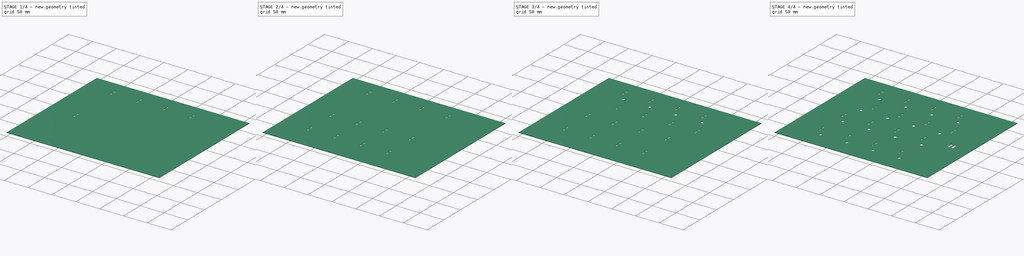
[diagram: build sequence overview — one tinted view per stage of 4, left to right]
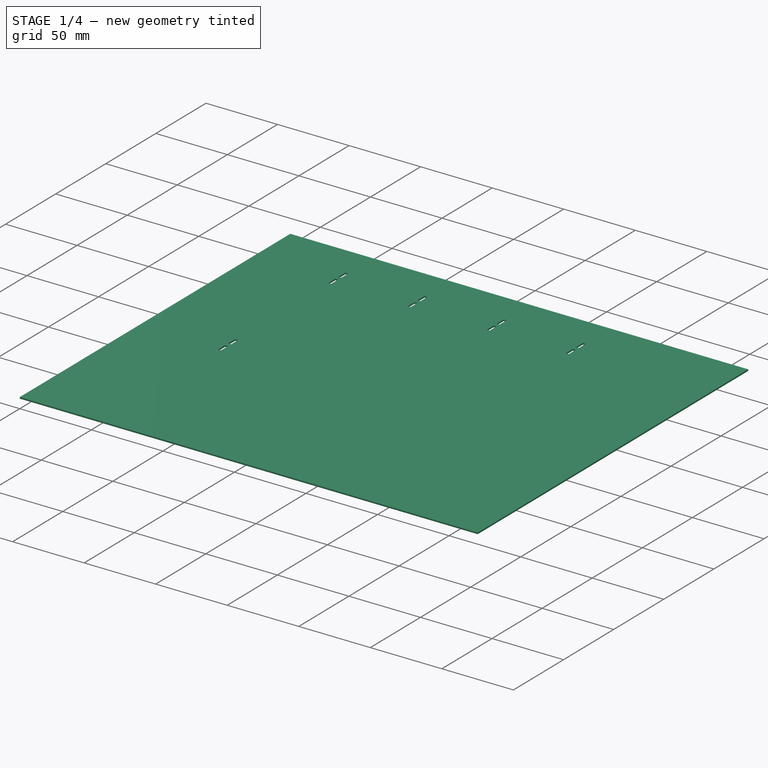
[diagram: stage 1 of 4 — iso view after this stage's code; geometry added in this stage tinted green]
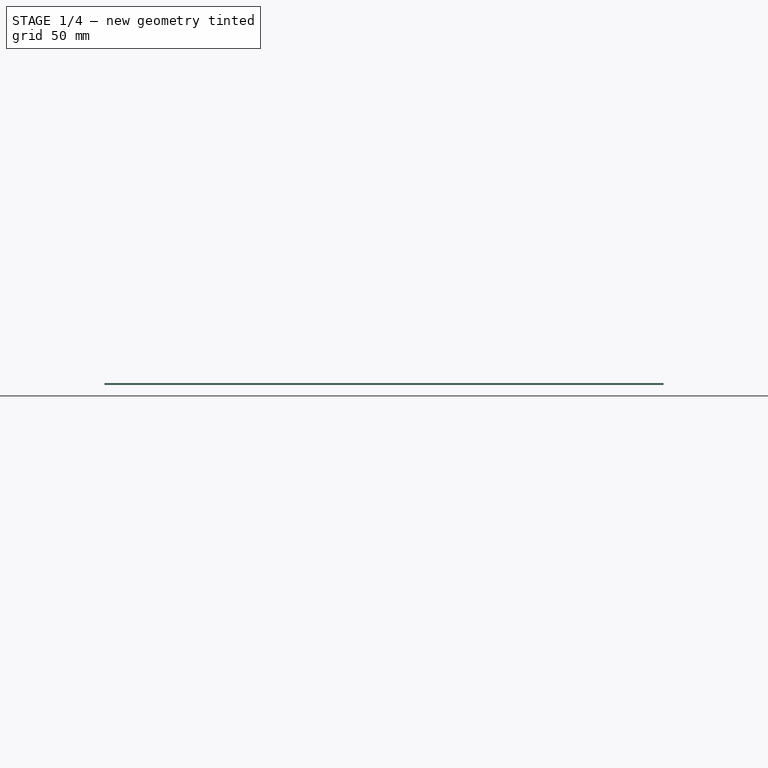
[diagram: stage 1 of 4 — front view after this stage's code; geometry added in this stage tinted green]
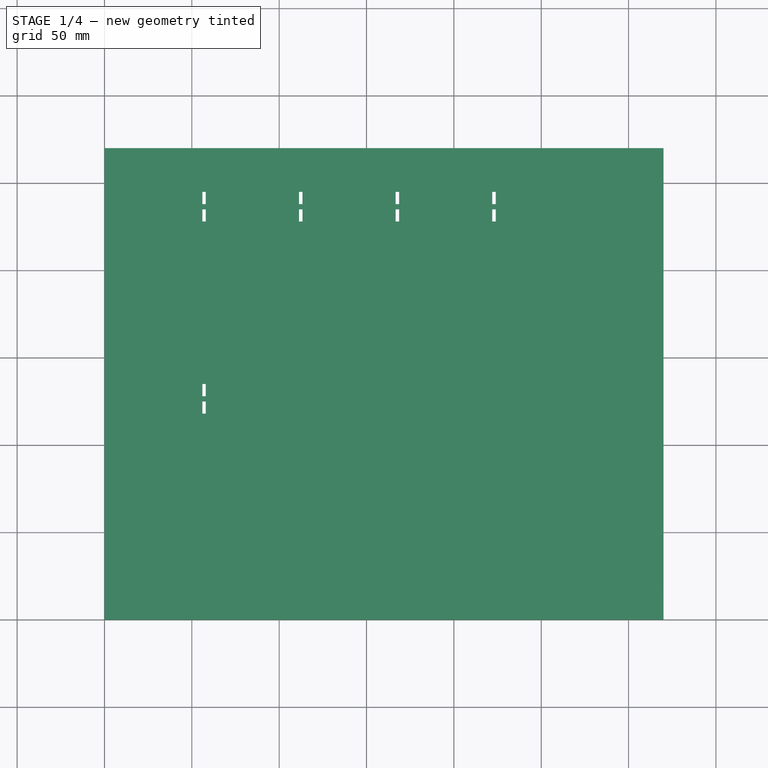
[diagram: stage 1 of 4 — top view after this stage's code; geometry added in this stage tinted green]
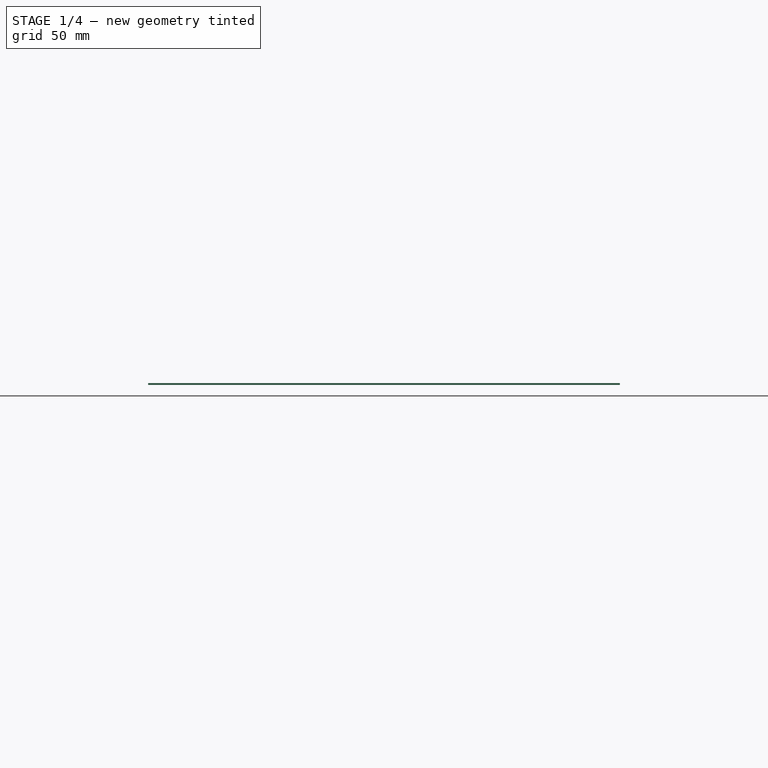
[diagram: stage 1 of 4 — right view after this stage's code; geometry added in this stage tinted green]
FCSTD DOCUMENT  (FreeCAD 0.14R3700 (Git))
Label: interFace-1mm
License: CC-BY 3.0
LicenseURL: http://creativecommons.org/licenses/by/3.0/
objects: Sketcher::SketchObject×8, PartDesign::Pocket×8, PartDesign::LinearPattern×5, Part::Box×1
note: 30 computed .brp shape members not serialized (recipe doc carries the construction recipe); baked Part::Feature solids carry a one-line shape summary decoded from their .brp

FEATURE [Part::Box] Box  label="Cubo"
  Height = 1
  Length = 320
  Width = 270
FEATURE [Sketcher::SketchObject] Sketch
  ExternalGeometry = -> [Box]
  Placement = pos=(0,0,1) rot=(0,0,1;0rad)
  Support = -> Box [Face6]
  sketch-geometry (8):
    g0: LineSegment StartX=56 StartY=245 StartZ=0 EndX=58 EndY=245 EndZ=0
    g1: LineSegment StartX=58 StartY=245 StartZ=0 EndX=58 EndY=238 EndZ=0
    g2: LineSegment StartX=58 StartY=238 StartZ=0 EndX=56 EndY=238 EndZ=0
    g3: LineSegment StartX=56 StartY=238 StartZ=0 EndX=56 EndY=245 EndZ=0
    g4: LineSegment StartX=58 StartY=235 StartZ=0 EndX=56 EndY=235 EndZ=0
    g5: LineSegment StartX=56 StartY=235 StartZ=0 EndX=56 EndY=228 EndZ=0
    g6: LineSegment StartX=56 StartY=228 StartZ=0 EndX=58 EndY=228 EndZ=0
    g7: LineSegment StartX=58 StartY=228 StartZ=0 EndX=58 EndY=235 EndZ=0
  constraints (28):
    c: Coincident(g0,g1)
    c: Coincident(g1,g2)
    c: Coincident(g2,g3)
    c: Coincident(g3,g0)
    c: Horizontal(g0)
    c: Horizontal(g2)
    c: Vertical(g1)
    c: Vertical(g3)
    c: Equal(g2,g0)
    c: Equal(g1,g3)
    c: DistanceX(g0) = 2
    c: DistanceY(g3) = 7
    c: DistanceY(g0,g-3) = 25
    c: DistanceX(g0,g-3) = -56
    c: Coincident(g4,g5)
    c: Coincident(g5,g6)
    c: Coincident(g6,g7)
    c: Coincident(g7,g4)
    c: Horizontal(g4)
    c: Horizontal(g6)
    c: Vertical(g5)
    c: Vertical(g7)
    c: Equal(g4,g6)
    c: DistanceX(g4) = -2
    c: Equal(g7,g5)
    c: DistanceY(g7) = 7
    c: DistanceX(g4,g-3) = -56
    c: DistanceY(g4,g-3) = 35
FEATURE [PartDesign::Pocket] Pocket
  Length = 5
  Sketch = -> Sketch
  Type = 0
FEATURE [PartDesign::LinearPattern] LinearPattern
  Direction = -> Sketch [H_Axis]
  Length = 166
  Occurrences = 4
  Originals = -> [Pocket]
FEATURE [Sketcher::SketchObject] Sketch001
  ExternalGeometry = -> [LinearPattern]
  Placement = pos=(0,0,1) rot=(0,0,1;0rad)
  Support = -> LinearPattern [Face3]
  sketch-geometry (8):
    g0: LineSegment StartX=58 StartY=135 StartZ=0 EndX=56 EndY=135 EndZ=0
    g1: LineSegment StartX=56 StartY=135 StartZ=0 EndX=56 EndY=128 EndZ=0
    g2: LineSegment StartX=56 StartY=128 StartZ=0 EndX=58 EndY=128 EndZ=0
    g3: LineSegment StartX=58 StartY=128 StartZ=0 EndX=58 EndY=135 EndZ=0
    g4: LineSegment StartX=58 StartY=125 StartZ=0 EndX=56 EndY=125 EndZ=0
    g5: LineSegment StartX=56 StartY=125 StartZ=0 EndX=56 EndY=118 EndZ=0
    g6: LineSegment StartX=56 StartY=118 StartZ=0 EndX=58 EndY=118 EndZ=0
    g7: LineSegment StartX=58 StartY=118 StartZ=0 EndX=58 EndY=125 EndZ=0
  constraints (28):
    c: Coincident(g0,g1)
    c: Coincident(g1,g2)
    c: Coincident(g2,g3)
    c: Coincident(g3,g0)
    c: Horizontal(g0)
    c: Horizontal(g2)
    c: Vertical(g1)
    c: Vertical(g3)
    c: Coincident(g4,g5)
    c: Coincident(g5,g6)
    c: Coincident(g6,g7)
    c: Coincident(g7,g4)
    c: Horizontal(g4)
    c: Horizontal(g6)
    c: Vertical(g5)
    c: Vertical(g7)
    c: Equal(g0,g2)
    c: Equal(g2,g4)
    c: Equal(g4,g6)
    c: Equal(g3,g1)
    c: Equal(g1,g5)
    c: Equal(g5,g7)
    c: DistanceX(g0) = -2
    c: DistanceY(g7) = 7
    c: DistanceY(g0,g-3) = 135
    c: DistanceX(g0,g-3) = -56
    c: DistanceX(g4,g-3) = -56
    c: DistanceY(g4,g-3) = 145
FEATURE [PartDesign::Pocket] Pocket001
  Length = 5
  Sketch = -> Sketch001
  Type = 0
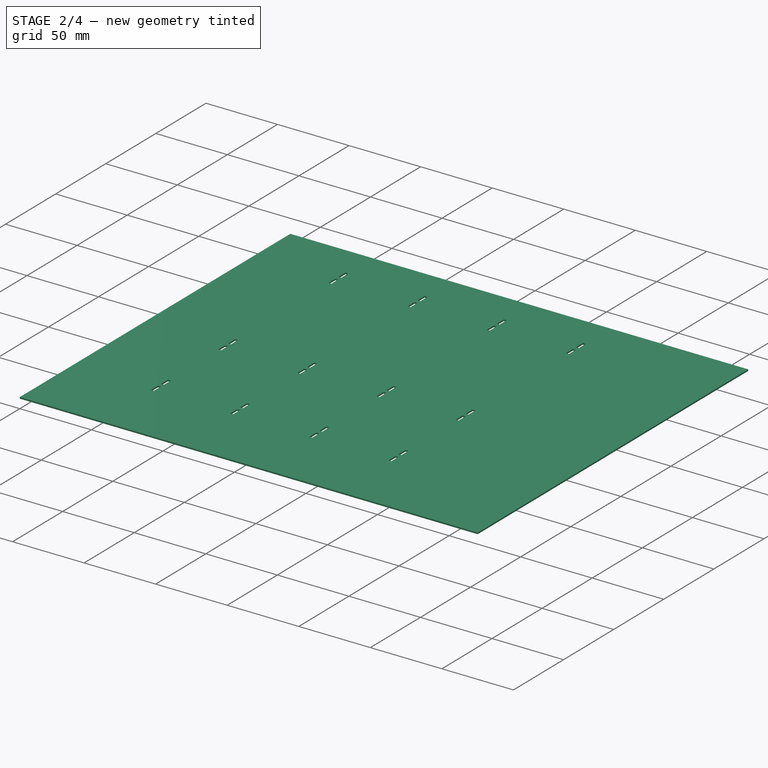
[diagram: stage 2 of 4 — iso view after this stage's code; geometry added in this stage tinted green]
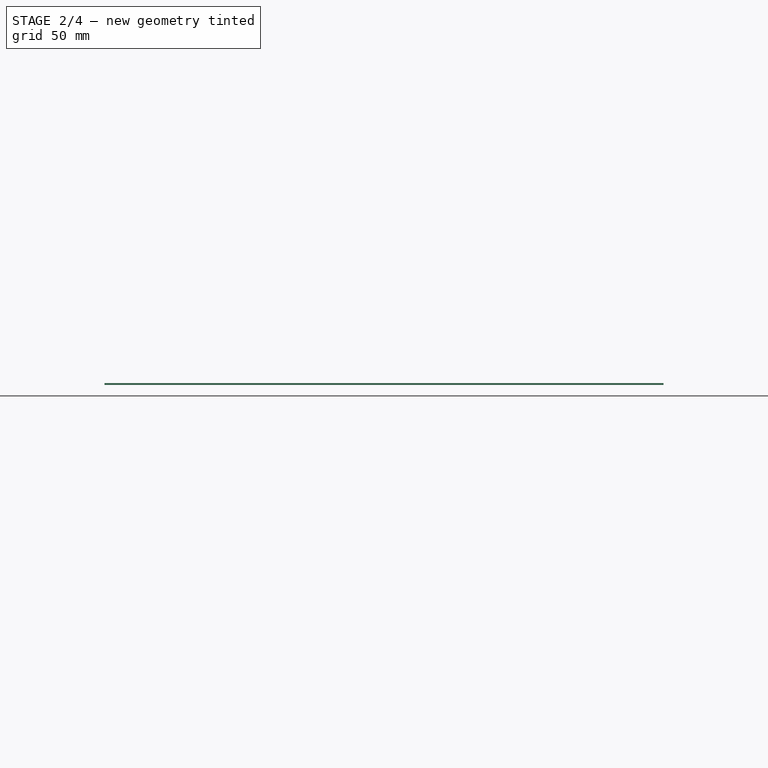
[diagram: stage 2 of 4 — front view after this stage's code; geometry added in this stage tinted green]
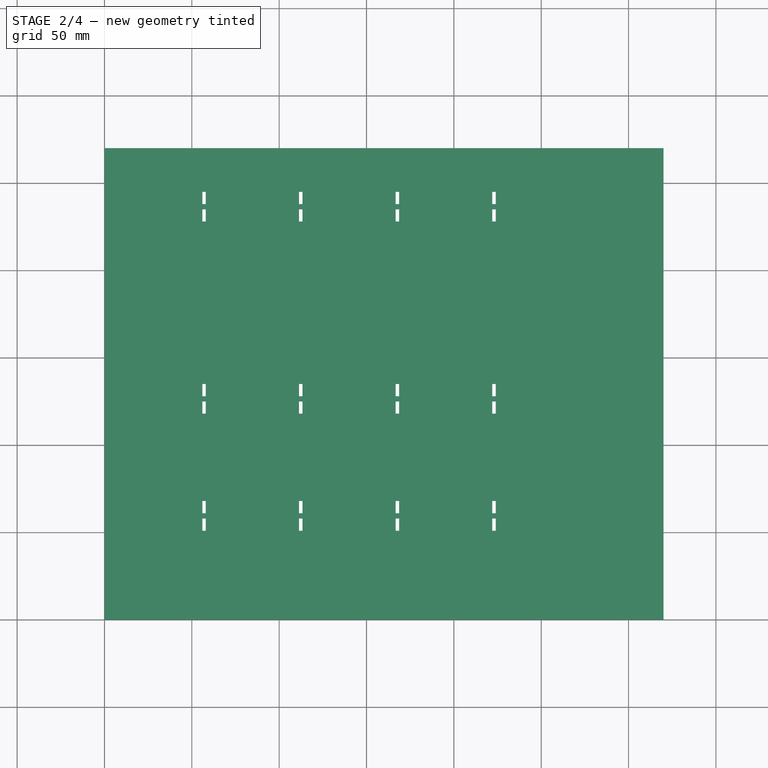
[diagram: stage 2 of 4 — top view after this stage's code; geometry added in this stage tinted green]
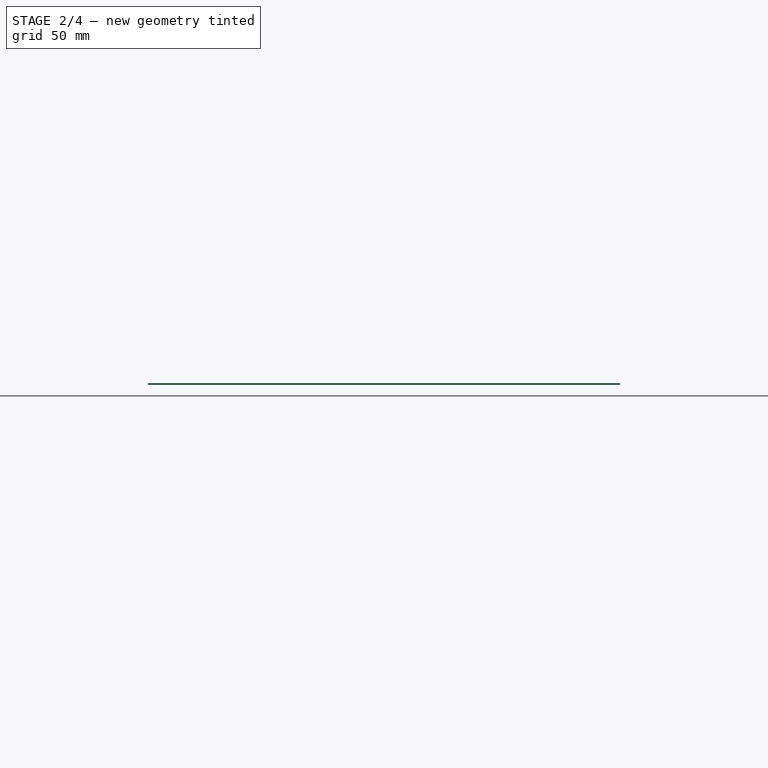
[diagram: stage 2 of 4 — right view after this stage's code; geometry added in this stage tinted green]
FEATURE [PartDesign::LinearPattern] LinearPattern001
  Direction = -> Sketch001 [H_Axis]
  Length = 166
  Occurrences = 4
  Originals = -> [Pocket001]
FEATURE [Sketcher::SketchObject] Sketch002
  ExternalGeometry = -> [LinearPattern001]
  Placement = pos=(0,0,1) rot=(0,0,1;0rad)
  Support = -> LinearPattern001 [Face3]
  sketch-geometry (8):
    g0: LineSegment StartX=58 StartY=68 StartZ=0 EndX=56 EndY=68 EndZ=0
    g1: LineSegment StartX=56 StartY=68 StartZ=0 EndX=56 EndY=61 EndZ=0
    g2: LineSegment StartX=56 StartY=61 StartZ=0 EndX=58 EndY=61 EndZ=0
    g3: LineSegment StartX=58 StartY=61 StartZ=0 EndX=58 EndY=68 EndZ=0
    g4: LineSegment StartX=58 StartY=58 StartZ=0 EndX=56 EndY=58 EndZ=0
    g5: LineSegment StartX=56 StartY=58 StartZ=0 EndX=56 EndY=51 EndZ=0
    g6: LineSegment StartX=56 StartY=51 StartZ=0 EndX=58 EndY=51 EndZ=0
    g7: LineSegment StartX=58 StartY=51 StartZ=0 EndX=58 EndY=58 EndZ=0
  constraints (28):
    c: Coincident(g0,g1)
    c: Coincident(g1,g2)
    c: Coincident(g2,g3)
    c: Coincident(g3,g0)
    c: Horizontal(g0)
    c: Horizontal(g2)
    c: Vertical(g1)
    c: Vertical(g3)
    c: Coincident(g4,g5)
    c: Coincident(g5,g6)
    c: Coincident(g6,g7)
    c: Coincident(g7,g4)
    c: Horizontal(g4)
    c: Horizontal(g6)
    c: Vertical(g5)
    c: Vertical(g7)
    c: Equal(g0,g2)
    c: Equal(g2,g4)
    c: Equal(g4,g6)
    c: DistanceX(g0) = -2
    c: Equal(g7,g5)
    c: Equal(g5,g3)
    c: Equal(g3,g1)
    c: DistanceY(g3) = 7
    c: DistanceX(g-1,g5) = 56
    c: DistanceX(g-1,g1) = 56
    c: DistanceY(g-1,g5) = 51
    c: DistanceY(g-1,g1) = 61
FEATURE [PartDesign::Pocket] Pocket002
  Length = 5
  Sketch = -> Sketch002
  Type = 0
FEATURE [PartDesign::LinearPattern] LinearPattern002
  Direction = -> Sketch002 [H_Axis]
  Length = 166
  Occurrences = 4
  Originals = -> [Pocket002]
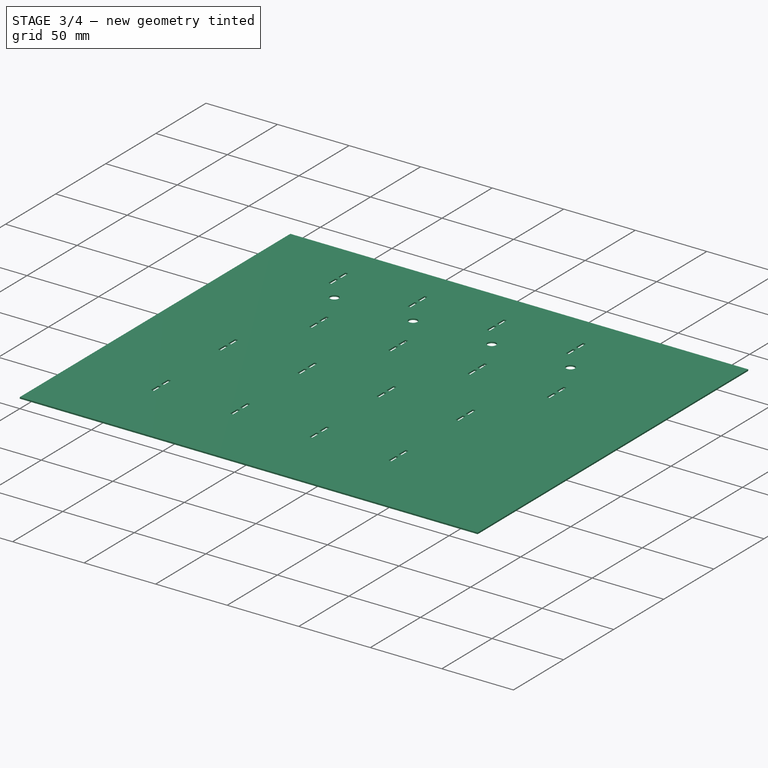
[diagram: stage 3 of 4 — iso view after this stage's code; geometry added in this stage tinted green]
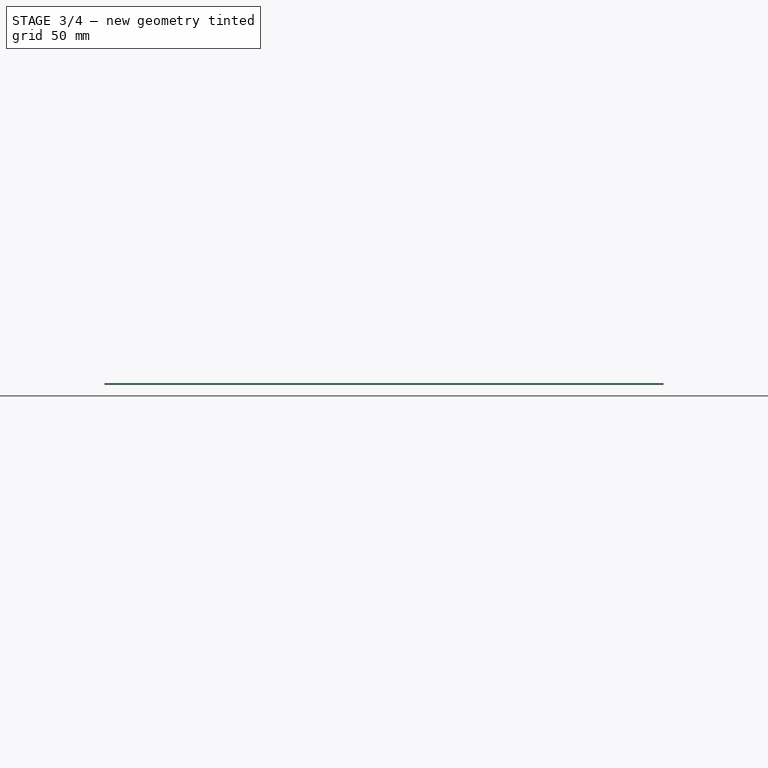
[diagram: stage 3 of 4 — front view after this stage's code; geometry added in this stage tinted green]
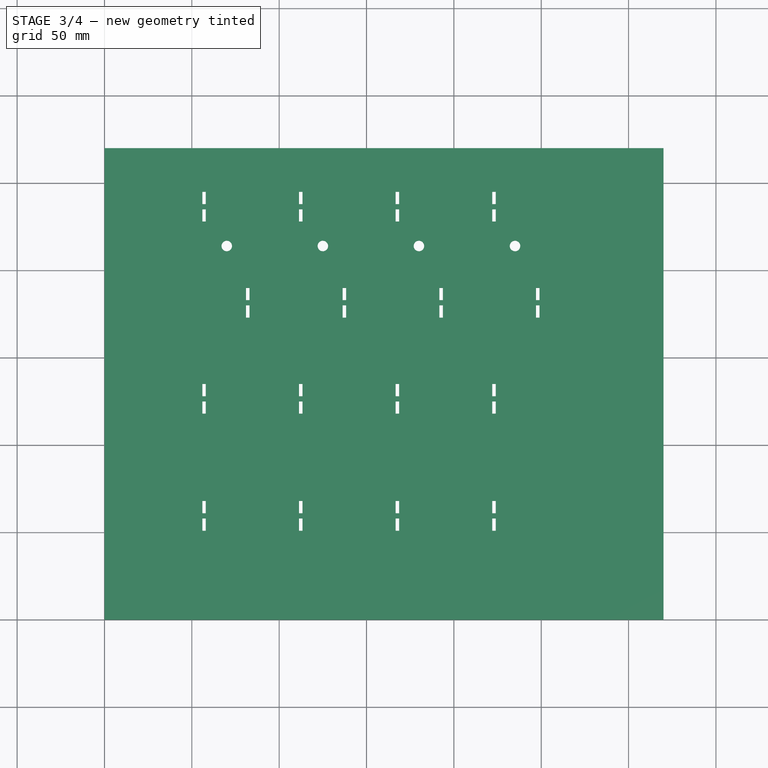
[diagram: stage 3 of 4 — top view after this stage's code; geometry added in this stage tinted green]
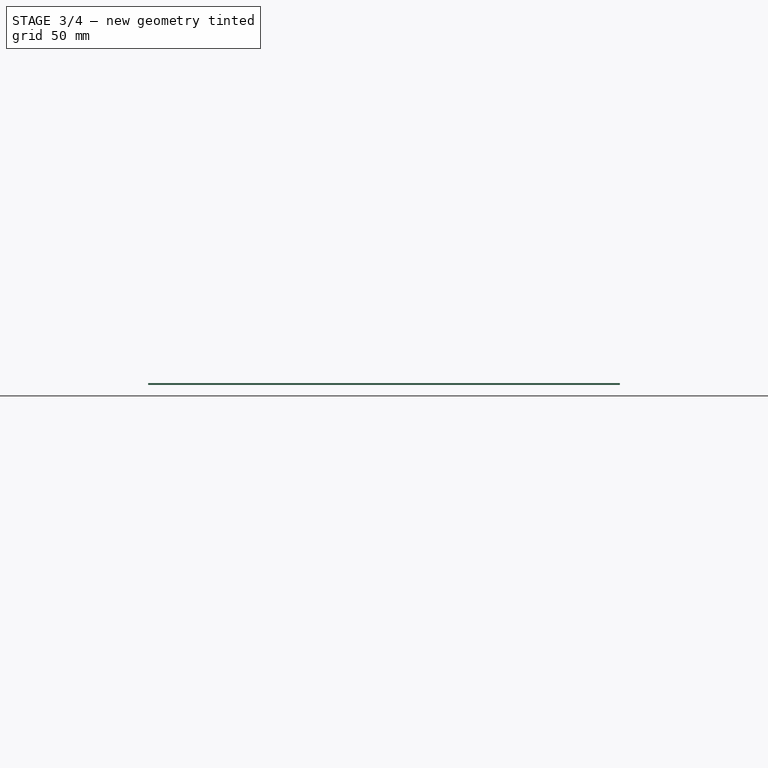
[diagram: stage 3 of 4 — right view after this stage's code; geometry added in this stage tinted green]
FEATURE [Sketcher::SketchObject] Sketch003
  ExternalGeometry = -> [LinearPattern002]
  Placement = pos=(0,0,1) rot=(0,0,1;0rad)
  Support = -> LinearPattern002 [Face3]
  sketch-geometry (8):
    g0: LineSegment StartX=83 StartY=190 StartZ=0 EndX=81 EndY=190 EndZ=0
    g1: LineSegment StartX=81 StartY=190 StartZ=0 EndX=81 EndY=183 EndZ=0
    g2: LineSegment StartX=81 StartY=183 StartZ=0 EndX=83 EndY=183 EndZ=0
    g3: LineSegment StartX=83 StartY=183 StartZ=0 EndX=83 EndY=190 EndZ=0
    g4: LineSegment StartX=83 StartY=180 StartZ=0 EndX=81 EndY=180 EndZ=0
    g5: LineSegment StartX=81 StartY=180 StartZ=0 EndX=81 EndY=173 EndZ=0
    g6: LineSegment StartX=81 StartY=173 StartZ=0 EndX=83 EndY=173 EndZ=0
    g7: LineSegment StartX=83 StartY=173 StartZ=0 EndX=83 EndY=180 EndZ=0
  constraints (28):
    c: Coincident(g0,g1)
    c: Coincident(g1,g2)
    c: Coincident(g2,g3)
    c: Coincident(g3,g0)
    c: Horizontal(g0)
    c: Horizontal(g2)
    c: Vertical(g1)
    c: Vertical(g3)
    c: Coincident(g4,g5)
    c: Coincident(g5,g6)
    c: Coincident(g6,g7)
    c: Coincident(g7,g4)
    c: Horizontal(g4)
    c: Horizontal(g6)
    c: Vertical(g5)
    c: Vertical(g7)
    c: Equal(g0,g2)
    c: Equal(g2,g4)
    c: Equal(g4,g6)
    c: Equal(g3,g1)
    c: Equal(g1,g5)
    c: Equal(g5,g7)
    c: DistanceX(g0) = -2
    c: DistanceY(g7) = 7
    c: DistanceX(g0,g-3) = -81
    c: DistanceY(g0,g-3) = 80
    c: DistanceY(g4,g-3) = 90
    c: DistanceX(g4,g-3) = -81
FEATURE [PartDesign::Pocket] Pocket003
  Length = 5
  Sketch = -> Sketch003
  Type = 0
FEATURE [PartDesign::LinearPattern] LinearPattern003
  Direction = -> Sketch003 [H_Axis]
  Length = 166
  Occurrences = 4
  Originals = -> [Pocket003]
FEATURE [Sketcher::SketchObject] Sketch004
  ExternalGeometry = -> [LinearPattern003]
  Placement = pos=(0,0,1) rot=(0,0,1;0rad)
  Support = -> LinearPattern003 [Face3]
  sketch-geometry (4):
    g0: Circle CenterX=70 CenterY=214 CenterZ=0 NormalX=0 NormalY=0 NormalZ=1 Radius=3
    g1: Circle CenterX=125 CenterY=214 CenterZ=0 NormalX=0 NormalY=0 NormalZ=1 Radius=3
    g2: Circle CenterX=180 CenterY=214 CenterZ=0 NormalX=0 NormalY=0 NormalZ=1 Radius=3
    g3: Circle CenterX=235 CenterY=214 CenterZ=0 NormalX=0 NormalY=0 NormalZ=1 Radius=3
  constraints (12):
    c: Radius(g0) = 3
    c: DistanceX(g0,g-3) = -70
    c: DistanceY(g0,g-3) = 56
    c: Equal(g0,g1)
    c: Equal(g1,g2)
    c: Equal(g2,g3)
    c: DistanceX(g0,g1) = 55
    c: DistanceY(g1,g-3) = 56
    c: DistanceX(g1,g2) = 55
    c: DistanceX(g2,g3) = 55
    c: DistanceY(g2,g-3) = 56
    c: DistanceY(g3,g-3) = 56
FEATURE [PartDesign::Pocket] Pocket004
  Length = 5
  Sketch = -> Sketch004
  Type = 0
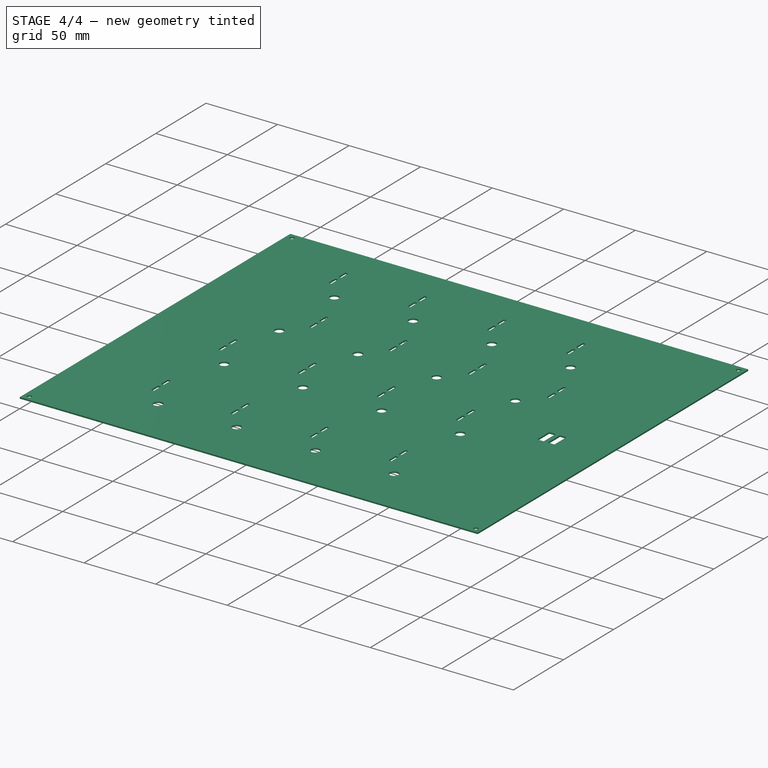
[diagram: stage 4 of 4 — iso view after this stage's code; geometry added in this stage tinted green]
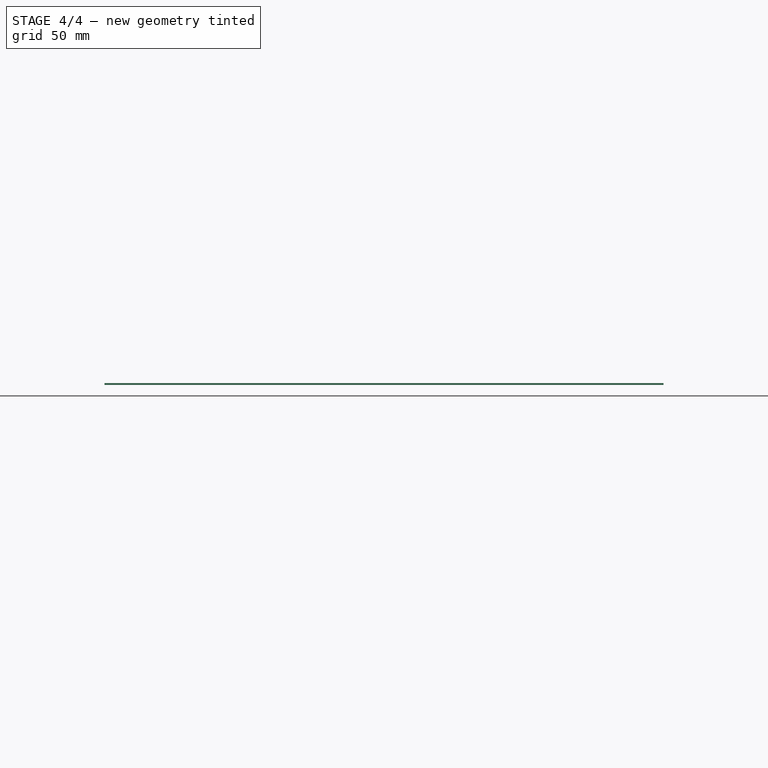
[diagram: stage 4 of 4 — front view after this stage's code; geometry added in this stage tinted green]
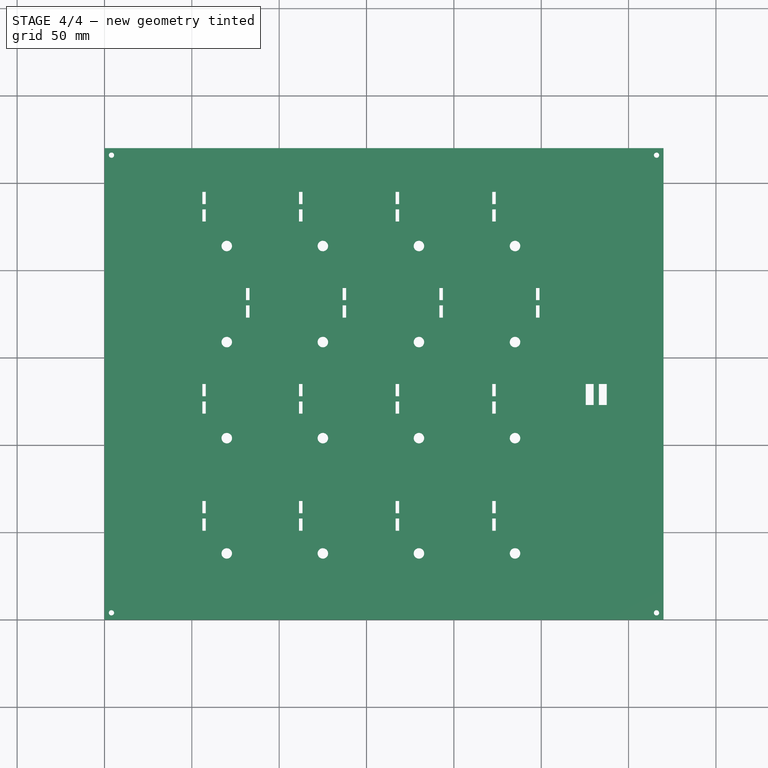
[diagram: stage 4 of 4 — top view after this stage's code; geometry added in this stage tinted green]
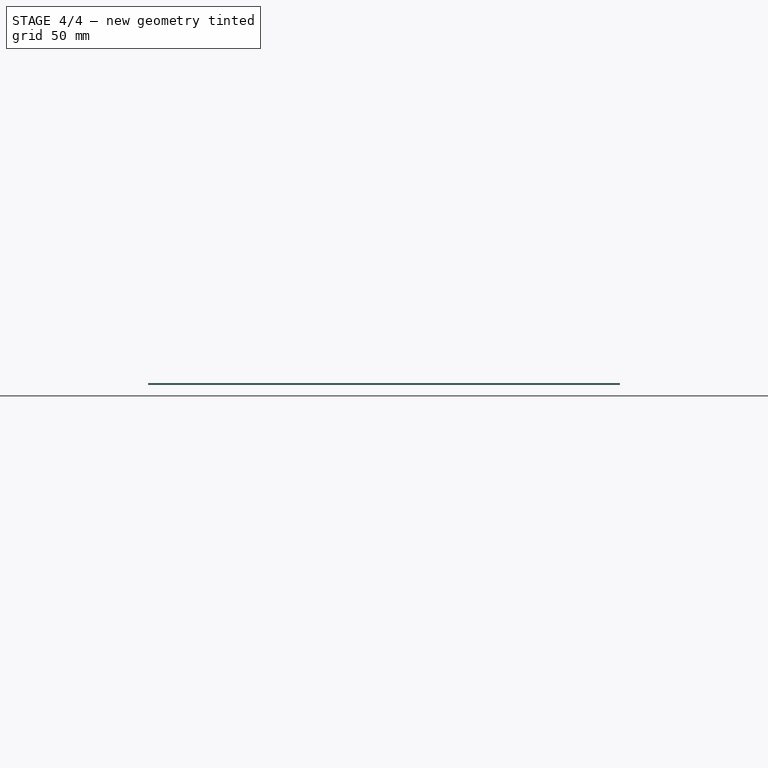
[diagram: stage 4 of 4 — right view after this stage's code; geometry added in this stage tinted green]
FEATURE [PartDesign::LinearPattern] LinearPattern004
  Direction = -> Sketch004 [V_Axis]
  Length = 110
  Occurrences = 3
  Originals = -> [Pocket004]
  Reversed = true
FEATURE [Sketcher::SketchObject] Sketch005
  Placement = pos=(0,0,1) rot=(0,0,1;0rad)
  Support = -> LinearPattern004 [Face3]
  sketch-geometry (4):
    g0: Circle CenterX=70 CenterY=38 CenterZ=0 NormalX=0 NormalY=0 NormalZ=1 Radius=3
    g1: Circle CenterX=125 CenterY=38 CenterZ=0 NormalX=0 NormalY=0 NormalZ=1 Radius=3
    g2: Circle CenterX=180 CenterY=38 CenterZ=0 NormalX=0 NormalY=0 NormalZ=1 Radius=3
    g3: Circle CenterX=235 CenterY=38 CenterZ=0 NormalX=0 NormalY=0 NormalZ=1 Radius=3
  constraints (12):
    c: Equal(g0,g1)
    c: Equal(g1,g2)
    c: Equal(g2,g3)
    c: Radius(g0) = 3
    c: DistanceX(g-1,g0) = 70
    c: DistanceY(g-1,g0) = 38
    c: DistanceX(g0,g1) = 55
    c: DistanceY(g-1,g1) = 38
    c: DistanceX(g2,g1) = -55
    c: DistanceY(g-1,g2) = 38
    c: DistanceY(g-1,g3) = 38
    c: DistanceX(g3,g2) = -55
FEATURE [PartDesign::Pocket] Pocket005
  Length = 5
  Sketch = -> Sketch005
  Type = 0
FEATURE [Sketcher::SketchObject] Sketch006
  ExternalGeometry = -> [Pocket005]
  Placement = pos=(0,0,1) rot=(0,0,1;0rad)
  Support = -> Pocket005 [Face3]
  sketch-geometry (8):
    g0: LineSegment StartX=280 StartY=135 StartZ=0 EndX=275.5 EndY=135 EndZ=0
    g1: LineSegment StartX=275.5 StartY=135 StartZ=0 EndX=275.5 EndY=123 EndZ=0
    g2: LineSegment StartX=275.5 StartY=123 StartZ=0 EndX=280 EndY=123 EndZ=0
    g3: LineSegment StartX=280 StartY=123 StartZ=0 EndX=280 EndY=135 EndZ=0
    g4: LineSegment StartX=283 StartY=135 StartZ=0 EndX=287.5 EndY=135 EndZ=0
    g5: LineSegment StartX=287.5 StartY=135 StartZ=0 EndX=287.5 EndY=123 EndZ=0
    g6: LineSegment StartX=287.5 StartY=123 StartZ=0 EndX=283 EndY=123 EndZ=0
    g7: LineSegment StartX=283 StartY=123 StartZ=0 EndX=283 EndY=135 EndZ=0
  constraints (28):
    c: Coincident(g0,g1)
    c: Coincident(g1,g2)
    c: Coincident(g2,g3)
    c: Coincident(g3,g0)
    c: Horizontal(g0)
    c: Horizontal(g2)
    c: Vertical(g1)
    c: Vertical(g3)
    c: Coincident(g4,g5)
    c: Coincident(g5,g6)
    c: Coincident(g6,g7)
    c: Coincident(g7,g4)
    c: Horizontal(g4)
    c: Horizontal(g6)
    c: Vertical(g5)
    c: Vertical(g7)
    c: Equal(g6,g4)
    c: Equal(g4,g0)
    c: Equal(g0,g2)
    c: DistanceX(g4) = 4.5
    c: Equal(g7,g5)
    c: Equal(g5,g3)
    c: Equal(g3,g1)
    c: DistanceY(g7) = 12
    c: DistanceX(g5,g-3) = 32.5
    c: DistanceY(g5,g-3) = -123
    c: DistanceY(g2,g-3) = -123
    c: DistanceX(g2,g6) = 3
FEATURE [PartDesign::Pocket] Pocket006  label="interFace-1mm"
  Length = 5
  Sketch = -> Sketch006
  Type = 0
FEATURE [Sketcher::SketchObject] Sketch007
  ExternalGeometry = -> [Pocket006]
  Placement = pos=(0,0,1) rot=(0,0,1;0rad)
  Support = -> Pocket006 [Face3]
  sketch-geometry (4):
    g0: Circle CenterX=4 CenterY=4 CenterZ=0 NormalX=0 NormalY=0 NormalZ=1 Radius=1.5
    g1: Circle CenterX=4 CenterY=266 CenterZ=0 NormalX=0 NormalY=0 NormalZ=1 Radius=1.5
    g2: Circle CenterX=316 CenterY=266 CenterZ=0 NormalX=0 NormalY=0 NormalZ=1 Radius=1.5
    g3: Circle CenterX=316 CenterY=4 CenterZ=0 NormalX=0 NormalY=0 NormalZ=1 Radius=1.5
  constraints (12):
    c: Radius(g0) = 1.5
    c: DistanceY(g-1,g0) = 4
    c: DistanceX(g-1,g0) = 4
    c: Radius(g1) = 1.5
    c: DistanceX(g-1,g1) = 4
    c: DistanceY(g1,g-3) = 4
    c: Radius(g2) = 1.5
    c: DistanceX(g2,g-3) = 4
    c: DistanceY(g2,g-3) = 4
    c: Radius(g3) = 1.5
    c: DistanceY(g3,g-4) = -4
    c: DistanceX(g3,g-4) = 4
FEATURE [PartDesign::Pocket] Pocket007  label="interFace-1mm(3)"
  Length = 5
  Sketch = -> Sketch007
  Type = 0
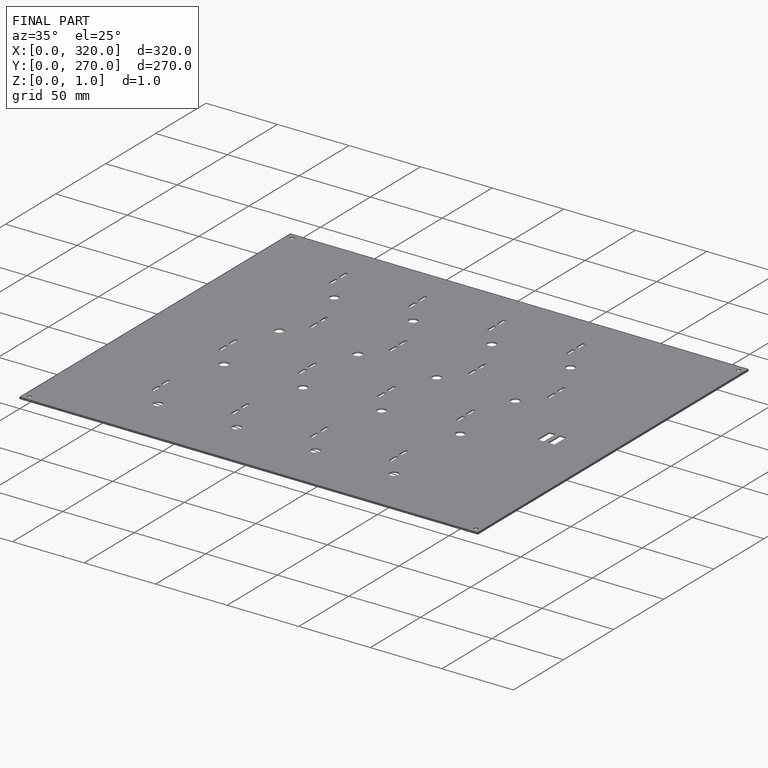
[diagram: finished part — iso view with bounding-box wireframe]
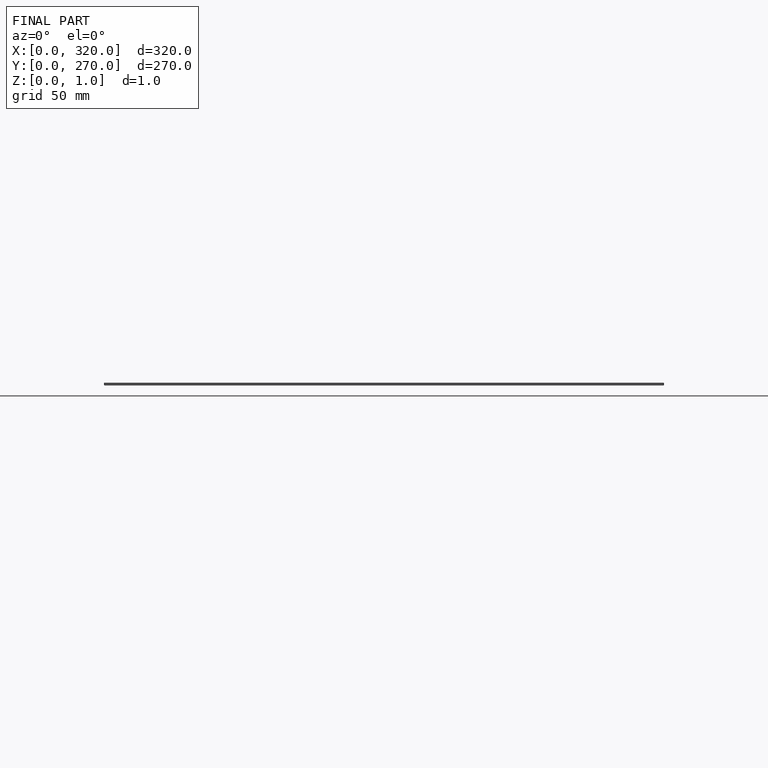
[diagram: finished part — front view with bounding-box wireframe]
